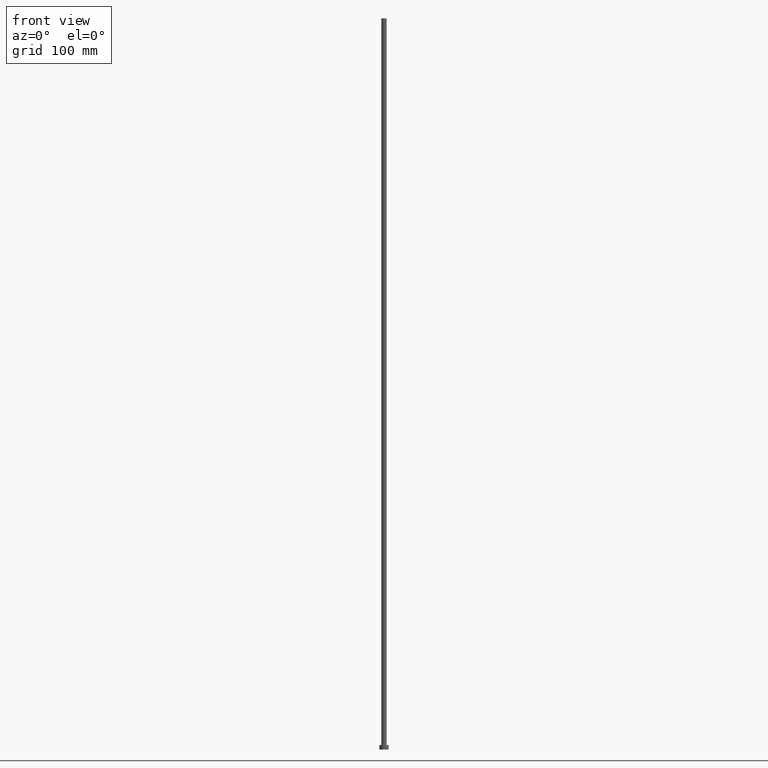
[diagram: clean part render]
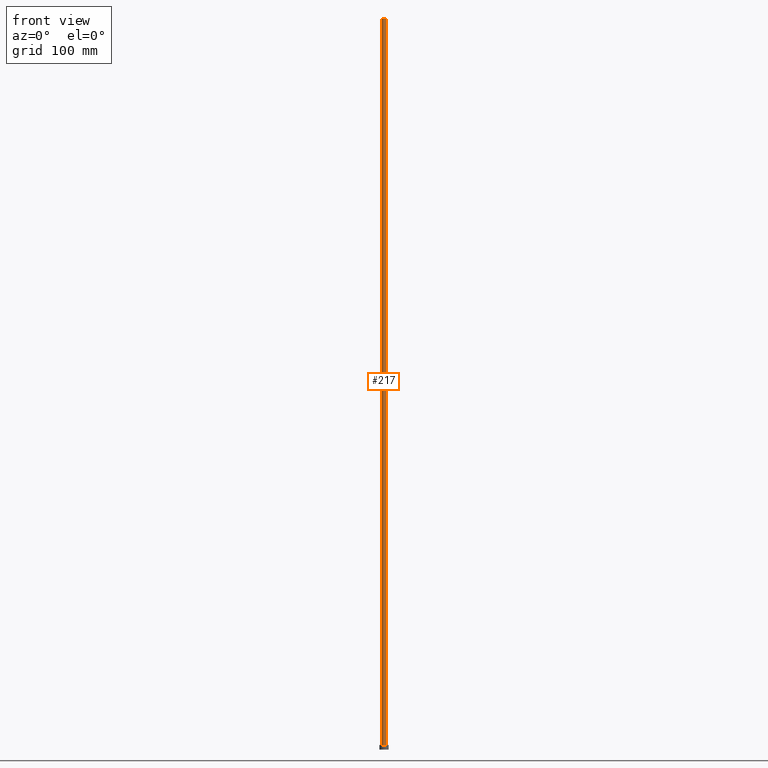
[diagram: same view with one face highlighted and labeled with its STEP entity id]
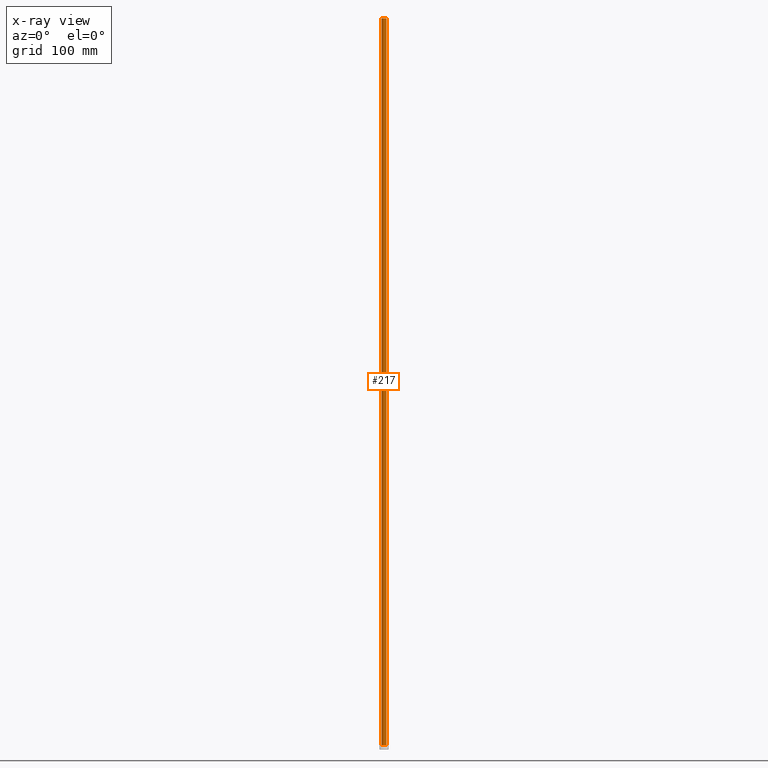
[diagram: x-ray of the same camera — body ghosted, the highlighted face saturated]
A machine part, front view. The second image highlights one B-rep face of the part: STEP entity #217.
The next image is the same camera in x-ray: the body ghosted, the highlighted face saturated — about 0% of this face is hidden behind the body in this view.
In plain terms, the highlighted cylindrical surface (edge-blend (fillet) strip) has radius 2.25 mm, axis along (-0, -0, -1).
Its self-contained STEP definition (entity closure, byte-faithful):
#3 = AXIS2_PLACEMENT_3D ( 'NONE', #149, #15, #254 ) ;
#15 = DIRECTION ( 'NONE',  ( 0.000000000000000000, 0.000000000000000000, 1.000000000000000000 ) ) ;
#16 = CYLINDRICAL_SURFACE ( 'NONE', #127, 2.250000000000000000 ) ;
#33 = LINE ( 'NONE', #125, #253 ) ;
#34 = VECTOR ( 'NONE', #90, 1000.000000000000000 ) ;
#38 = CARTESIAN_POINT ( 'NONE',  ( 2.250000000000000000, 2.755455298081544285E-16, 4.000000000000000000 ) ) ;
#59 = CARTESIAN_POINT ( 'NONE',  ( 0.000000000000000000, 0.000000000000000000, 4.000000000000000000 ) ) ;
#61 = EDGE_LOOP ( 'NONE', ( #113, #161, #192, #175 ) ) ;
#77 = EDGE_CURVE ( 'NONE', #255, #165, #33, .T. ) ;
#90 = DIRECTION ( 'NONE',  ( -0.000000000000000000, -0.000000000000000000, -1.000000000000000000 ) ) ;
#93 = CARTESIAN_POINT ( 'NONE',  ( -2.250000000000000000, 0.000000000000000000, 630.0000000000000000 ) ) ;
#108 = DIRECTION ( 'NONE',  ( -0.000000000000000000, -0.000000000000000000, -1.000000000000000000 ) ) ;
#113 = ORIENTED_EDGE ( 'NONE', *, *, #77, .F. ) ;
#114 = EDGE_CURVE ( 'NONE', #129, #255, #189, .T. ) ;
#125 = CARTESIAN_POINT ( 'NONE',  ( 2.250000000000000000, 2.755455298081544285E-16, 630.0000000000000000 ) ) ;
#127 = AXIS2_PLACEMENT_3D ( 'NONE', #211, #108, #193 ) ;
#129 = VERTEX_POINT ( 'NONE', #93 ) ;
#138 = CARTESIAN_POINT ( 'NONE',  ( 2.250000000000000000, 2.755455298081544285E-16, 630.0000000000000000 ) ) ;
#148 = CARTESIAN_POINT ( 'NONE',  ( -2.250000000000000000, 0.000000000000000000, 4.000000000000000000 ) ) ;
#149 = CARTESIAN_POINT ( 'NONE',  ( 0.000000000000000000, 0.000000000000000000, 630.0000000000000000 ) ) ;
#156 = CARTESIAN_POINT ( 'NONE',  ( -2.250000000000000000, 0.000000000000000000, 630.0000000000000000 ) ) ;
#161 = ORIENTED_EDGE ( 'NONE', *, *, #114, .F. ) ;
#162 = EDGE_CURVE ( 'NONE', #129, #212, #176, .T. ) ;
#165 = VERTEX_POINT ( 'NONE', #38 ) ;
#171 = EDGE_CURVE ( 'NONE', #212, #165, #181, .T. ) ;
#172 = DIRECTION ( 'NONE',  ( 0.000000000000000000, 0.000000000000000000, 1.000000000000000000 ) ) ;
#175 = ORIENTED_EDGE ( 'NONE', *, *, #171, .T. ) ;
#176 = LINE ( 'NONE', #156, #34 ) ;
#181 = CIRCLE ( 'NONE', #224, 2.250000000000000000 ) ;
#189 = CIRCLE ( 'NONE', #3, 2.250000000000000000 ) ;
#191 = FACE_OUTER_BOUND ( 'NONE', #61, .T. ) ;
#192 = ORIENTED_EDGE ( 'NONE', *, *, #162, .T. ) ;
#193 = DIRECTION ( 'NONE',  ( -1.000000000000000000, 0.000000000000000000, 0.000000000000000000 ) ) ;
#211 = CARTESIAN_POINT ( 'NONE',  ( 0.000000000000000000, 0.000000000000000000, 630.0000000000000000 ) ) ;
#212 = VERTEX_POINT ( 'NONE', #148 ) ;
#217 = ADVANCED_FACE ( 'NONE', ( #191 ), #16, .T. ) ;
#224 = AXIS2_PLACEMENT_3D ( 'NONE', #59, #172, #236 ) ;
#236 = DIRECTION ( 'NONE',  ( 1.000000000000000000, 0.000000000000000000, 0.000000000000000000 ) ) ;
#247 = DIRECTION ( 'NONE',  ( -0.000000000000000000, -0.000000000000000000, -1.000000000000000000 ) ) ;
#253 = VECTOR ( 'NONE', #247, 1000.000000000000000 ) ;
#254 = DIRECTION ( 'NONE',  ( 1.000000000000000000, 0.000000000000000000, 0.000000000000000000 ) ) ;
#255 = VERTEX_POINT ( 'NONE', #138 ) ;